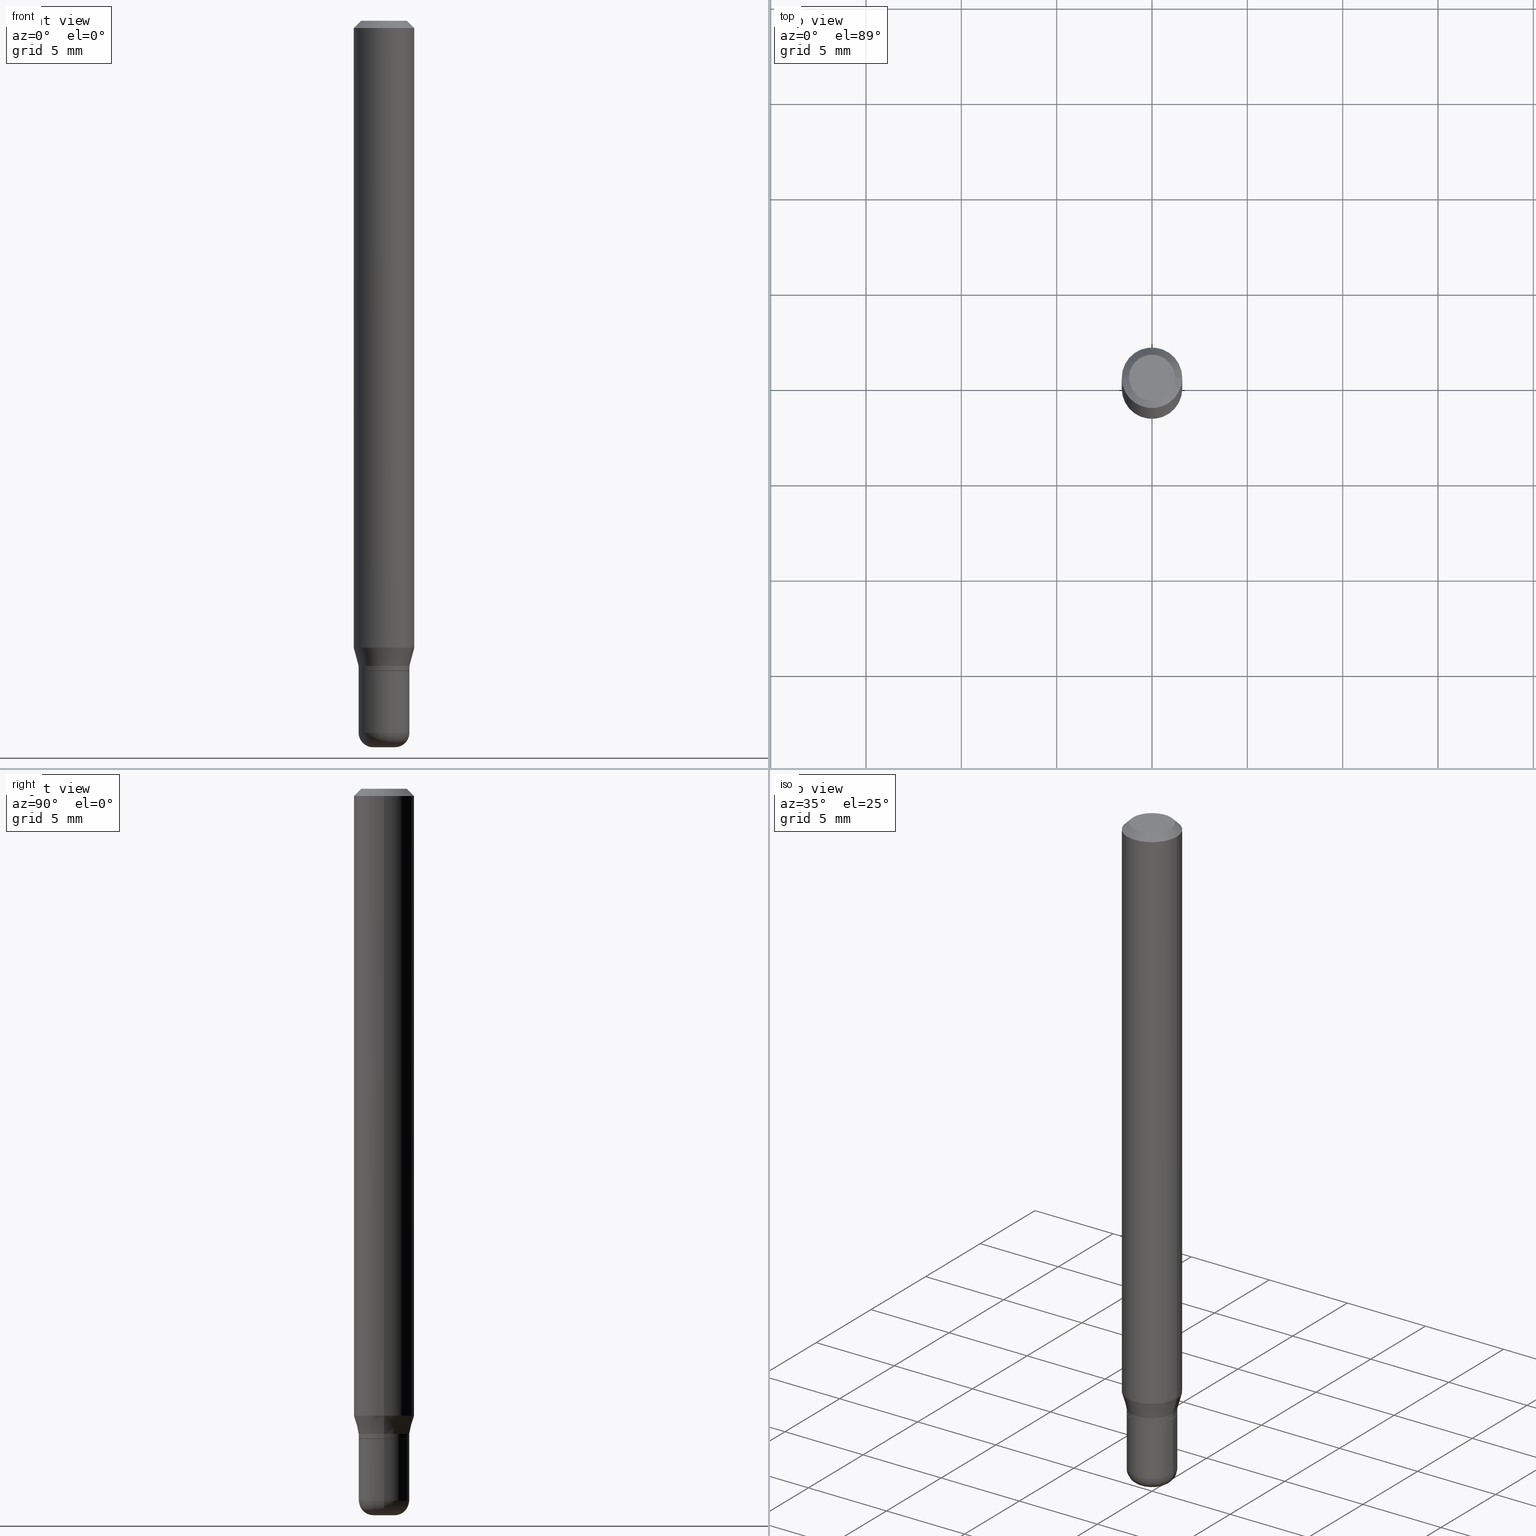
[diagram: canonical four-view strip — front | top / right | iso, engineering-drawing reading convention]
A machine part, canonical four-view strip (front | top / right | iso — engineering-drawing reading convention). The complete STEP part file that produces these views, byte-faithful:
ISO-10303-21;
HEADER;
FILE_DESCRIPTION (( 'STEP AP203' ),
    '1' );
FILE_NAME ('08750.STEP',
    '2024-02-29T20:48:12',
    ( '' ),
    ( '' ),
    'SwSTEP 2.0',
    'SolidWorks 2023',
    '' );
FILE_SCHEMA (( 'CONFIG_CONTROL_DESIGN' ));
ENDSEC;

DATA;
#1 = EDGE_CURVE ( 'NONE', #116, #23, #394, .T. ) ;
#2 = ORIENTED_EDGE ( 'NONE', *, *, #384, .F. ) ;
#3 = DIRECTION ( 'NONE',  ( 1.000000000000000000, -6.982962677686266711E-15, 4.876176775795936353E-29 ) ) ;
#4 = CARTESIAN_POINT ( 'NONE',  ( 3.668203209277632395E-31, -5.237222008264614861E-17, -0.01499999999999970281 ) ) ;
#5 = PERSON_AND_ORGANIZATION ( #91, #464 ) ;
#6 = PERSON_AND_ORGANIZATION ( #91, #464 ) ;
#7 = ORIENTED_EDGE ( 'NONE', *, *, #138, .T. ) ;
#8 = CARTESIAN_POINT ( 'NONE',  ( 3.594839145092150820E-29, -5.132477568099424807E-15, -1.470000000000000195 ) ) ;
#9 = EDGE_CURVE ( 'NONE', #229, #146, #83, .T. ) ;
#10 = CARTESIAN_POINT ( 'NONE',  ( -0.05200000000000005312, -4.317831474801671617E-15, -1.342500000000000249 ) ) ;
#11 = DATE_AND_TIME ( #251, #180 ) ;
#12 = DIRECTION ( 'NONE',  ( -2.445468806185136597E-29, 3.491481338843145583E-15, 1.000000000000000000 ) ) ;
#13 = PERSON_AND_ORGANIZATION ( #91, #464 ) ;
#14 = APPROVAL_ROLE ( '' ) ;
#15 = DIRECTION ( 'NONE',  ( 1.000000000000000000, -6.982962677686258033E-15, 0.000000000000000000 ) ) ;
#16 = ORIENTED_EDGE ( 'NONE', *, *, #368, .T. ) ;
#17 = AXIS2_PLACEMENT_3D ( 'NONE', #153, #237, #385 ) ;
#18 = CARTESIAN_POINT ( 'NONE',  ( 3.257364449838602633E-29, -4.650653143339071678E-15, -1.332000000000000517 ) ) ;
#19 = CALENDAR_DATE ( 2024, 29, 2 ) ;
#20 = DIRECTION ( 'NONE',  ( -2.438088387897960049E-29, 3.491481338843145188E-15, 1.000000000000000000 ) ) ;
#21 = AXIS2_PLACEMENT_3D ( 'NONE', #439, #44, #205 ) ;
#22 = CARTESIAN_POINT ( 'NONE',  ( 0.000000000000000000, 0.000000000000000000, 0.000000000000000000 ) ) ;
#23 = VERTEX_POINT ( 'NONE', #370 ) ;
#24 = ADVANCED_FACE ( 'NONE', ( #367 ), #410, .F. ) ;
#25 = CIRCLE ( 'NONE', #230, 0.05250000000000007438 ) ;
#26 = CYLINDRICAL_SURFACE ( 'NONE', #294, 0.05250000000000006051 ) ;
#27 = ORIENTED_EDGE ( 'NONE', *, *, #347, .F. ) ;
#28 = COORDINATED_UNIVERSAL_TIME_OFFSET ( 5, 0, .BEHIND. ) ;
#29 = DIRECTION ( 'NONE',  ( -2.445468806185136597E-29, 3.491481338843145583E-15, 1.000000000000000000 ) ) ;
#30 = ORIENTED_EDGE ( 'NONE', *, *, #337, .T. ) ;
#31 = EDGE_CURVE ( 'NONE', #67, #229, #510, .T. ) ;
#32 = DIRECTION ( 'NONE',  ( 1.000000000000000000, -6.982962677686265922E-15, 4.876176775795935793E-29 ) ) ;
#33 = ADVANCED_FACE ( 'NONE', ( #287 ), #75, .T. ) ;
#34 = ORIENTED_EDGE ( 'NONE', *, *, #417, .F. ) ;
#35 = CARTESIAN_POINT ( 'NONE',  ( -0.05249999999999999806, -4.536860696474120707E-15, -1.342500000000000249 ) ) ;
#36 = AXIS2_PLACEMENT_3D ( 'NONE', #22, #257, #53 ) ;
#37 = CARTESIAN_POINT ( 'NONE',  ( -0.05250000000000009520, -4.536860696474119918E-15, -1.470000000000000195 ) ) ;
#38 = VERTEX_POINT ( 'NONE', #285 ) ;
#39 = ORIENTED_EDGE ( 'NONE', *, *, #269, .T. ) ;
#40 = DIRECTION ( 'NONE',  ( -0.7071067811865479058, 2.468850131082261005E-15, -0.7071067811865471286 ) ) ;
#41 = DIRECTION ( 'NONE',  ( 1.000000000000000000, -6.982962677686266711E-15, 4.876176775795935793E-29 ) ) ;
#42 = PERSON_AND_ORGANIZATION ( #91, #464 ) ;
#43 = AXIS2_PLACEMENT_3D ( 'NONE', #201, #281, #437 ) ;
#44 = DIRECTION ( 'NONE',  ( -6.982962677686266711E-15, -1.000000000000000000, 3.491481338843145583E-15 ) ) ;
#45 = CARTESIAN_POINT ( 'NONE',  ( 3.316907271900976589E-16, 0.04750000000000000749, -2.925296391183627249E-17 ) ) ;
#46 = DIRECTION ( 'NONE',  ( -1.000000000000000000, 6.982962677686265922E-15, -4.876176775795935793E-29 ) ) ;
#47 = CC_DESIGN_DATE_AND_TIME_ASSIGNMENT ( #181, #103, ( #498 ) ) ;
#48 = DIRECTION ( 'NONE',  ( -2.445468806185136877E-29, 3.491481338843145188E-15, 1.000000000000000000 ) ) ;
#49 = DIRECTION ( 'NONE',  ( 1.000000000000000000, -6.982962677686267499E-15, 4.876176775795936353E-29 ) ) ;
#50 = VECTOR ( 'NONE', #447, 39.37007874015748143 ) ;
#51 = CARTESIAN_POINT ( 'NONE',  ( 3.283041872303546419E-29, -4.687313697396923253E-15, -1.342500000000000249 ) ) ;
#52 = PERSON_AND_ORGANIZATION_ROLE ( 'design_supplier' ) ;
#53 = DIRECTION ( 'NONE',  ( 1.000000000000000000, -6.982962677686266711E-15, 4.876176775795935793E-29 ) ) ;
#54 = ORIENTED_EDGE ( 'NONE', *, *, #242, .T. ) ;
#55 = CARTESIAN_POINT ( 'NONE',  ( -0.05200000000000005312, -4.315182247627559627E-15, -1.342500000000000249 ) ) ;
#56 = ORIENTED_EDGE ( 'NONE', *, *, #317, .F. ) ;
#57 = EDGE_CURVE ( 'NONE', #311, #142, #141, .T. ) ;
#58 = FACE_OUTER_BOUND ( 'NONE', #421, .T. ) ;
#59 = CALENDAR_DATE ( 2024, 29, 2 ) ;
#60 = CARTESIAN_POINT ( 'NONE',  ( 3.257364449838602633E-29, -4.650653143339071678E-15, -1.332000000000000517 ) ) ;
#61 = EDGE_CURVE ( 'NONE', #345, #476, #387, .T. ) ;
#62 = EDGE_LOOP ( 'NONE', ( #466, #390, #414, #379 ) ) ;
#63 = DIRECTION ( 'NONE',  ( -2.445468806185136597E-29, 3.491481338843145583E-15, 1.000000000000000000 ) ) ;
#64 = CIRCLE ( 'NONE', #208, 0.05250000000000010908 ) ;
#65 = ORIENTED_EDGE ( 'NONE', *, *, #148, .T. ) ;
#66 = AXIS2_PLACEMENT_3D ( 'NONE', #145, #101, #307 ) ;
#67 = VERTEX_POINT ( 'NONE', #163 ) ;
#68 = EDGE_CURVE ( 'NONE', #23, #311, #322, .T. ) ;
#69 = ORIENTED_EDGE ( 'NONE', *, *, #138, .F. ) ;
#70 = DIRECTION ( 'NONE',  ( -2.445468806185136877E-29, 3.491481338843145188E-15, 1.000000000000000000 ) ) ;
#71 = CARTESIAN_POINT ( 'NONE',  ( 3.283041872303546419E-29, -4.687313697396923253E-15, -1.342500000000000249 ) ) ;
#72 = ORIENTED_EDGE ( 'NONE', *, *, #61, .T. ) ;
#73 = AXIS2_PLACEMENT_3D ( 'NONE', #60, #465, #506 ) ;
#74 = VERTEX_POINT ( 'NONE', #301 ) ;
#75 = CYLINDRICAL_SURFACE ( 'NONE', #113, 0.06250000000000000000 ) ;
#76 = DIRECTION ( 'NONE',  ( 1.000000000000000000, -6.982962677686272233E-15, 0.000000000000000000 ) ) ;
#77 = DIRECTION ( 'NONE',  ( -2.445468806185136597E-29, 3.491481338843145583E-15, 1.000000000000000000 ) ) ;
#78 = AXIS2_PLACEMENT_3D ( 'NONE', #468, #274, #427 ) ;
#79 = APPROVAL_STATUS ( 'not_yet_approved' ) ;
#80 = EDGE_CURVE ( 'NONE', #146, #152, #478, .T. ) ;
#81 = ORIENTED_EDGE ( 'NONE', *, *, #384, .T. ) ;
#82 = DIRECTION ( 'NONE',  ( 1.000000000000000000, -6.982962677686258033E-15, 0.000000000000000000 ) ) ;
#83 = LINE ( 'NONE', #359, #239 ) ;
#84 = DIRECTION ( 'NONE',  ( 0.000000000000000000, 0.000000000000000000, 1.000000000000000000 ) ) ;
#85 = PERSON_AND_ORGANIZATION ( #91, #464 ) ;
#86 = DIRECTION ( 'NONE',  ( -1.000000000000000000, 7.105427357600997126E-15, 0.000000000000000000 ) ) ;
#87 = AXIS2_PLACEMENT_3D ( 'NONE', #267, #412, #49 ) ;
#88 = ADVANCED_FACE ( 'NONE', ( #381 ), #297, .T. ) ;
#89 = DIRECTION ( 'NONE',  ( 0.7071067811864267805, -2.468850131080992517E-15, 0.7071067811866682540 ) ) ;
#90 = VERTEX_POINT ( 'NONE', #96 ) ;
#91 = PERSON ( 'UNSPECIFIED', 'UNSPECIFIED', 'UNSPECIFIED', ('UNSPECIFIED'), ('UNSPECIFIED'), ('UNSPECIFIED') ) ;
#92 = VERTEX_POINT ( 'NONE', #459 ) ;
#93 = VECTOR ( 'NONE', #70, 39.37007874015748143 ) ;
#94 = SHAPE_DEFINITION_REPRESENTATION ( #225, #313 ) ;
#95 = CC_DESIGN_PERSON_AND_ORGANIZATION_ASSIGNMENT ( #13, #413, ( #498 ) ) ;
#96 = CARTESIAN_POINT ( 'NONE',  ( 0.05250000000000010908, -5.499083108677954756E-15, -1.470000000000000195 ) ) ;
#97 = PRODUCT ( '08750', '08750', '', ( #446 ) ) ;
#98 = ORIENTED_EDGE ( 'NONE', *, *, #269, .F. ) ;
#99 = CC_DESIGN_APPROVAL ( #276, ( #320 ) ) ;
#100 = VECTOR ( 'NONE', #40, 39.37007874015748143 ) ;
#101 = DIRECTION ( 'NONE',  ( -2.445468806185136597E-29, 3.491481338843145583E-15, 1.000000000000000000 ) ) ;
#102 = EDGE_LOOP ( 'NONE', ( #356, #39, #56, #238 ) ) ;
#103 = DATE_TIME_ROLE ( 'classification_date' ) ;
#104 = EDGE_LOOP ( 'NONE', ( #395, #72 ) ) ;
#105 = DIRECTION ( 'NONE',  ( -2.445468806185136597E-29, 3.491481338843145583E-15, 1.000000000000000000 ) ) ;
#106 = ORIENTED_EDGE ( 'NONE', *, *, #160, .F. ) ;
#107 = AXIS2_PLACEMENT_3D ( 'NONE', #434, #184, #400 ) ;
#108 = DIRECTION ( 'NONE',  ( 1.000000000000000000, -6.982962677686267499E-15, 4.876176775795936353E-29 ) ) ;
#109 = EDGE_LOOP ( 'NONE', ( #240, #115, #305, #27 ) ) ;
#110 = CARTESIAN_POINT ( 'NONE',  ( 0.05250000000000005357, -3.666055405785293573E-16, 2.559992807292869164E-30 ) ) ;
#111 = DIRECTION ( 'NONE',  ( -0.7071067811864267805, 7.493145998869918709E-15, 0.7071067811866682540 ) ) ;
#112 = PLANE ( 'NONE',  #286 ) ;
#113 = AXIS2_PLACEMENT_3D ( 'NONE', #516, #241, #41 ) ;
#114 = PRODUCT_RELATED_PRODUCT_CATEGORY ( 'detail', '', ( #97 ) ) ;
#115 = ORIENTED_EDGE ( 'NONE', *, *, #312, .T. ) ;
#116 = VERTEX_POINT ( 'NONE', #55 ) ;
#117 = DIRECTION ( 'NONE',  ( -2.445468806185136597E-29, 3.491481338843145583E-15, 1.000000000000000000 ) ) ;
#118 = VECTOR ( 'NONE', #327, 39.37007874015748143 ) ;
#119 = DIRECTION ( 'NONE',  ( -2.445468806185136597E-29, 3.491481338843145583E-15, 1.000000000000000000 ) ) ;
#120 = EDGE_CURVE ( 'NONE', #197, #253, #25, .T. ) ;
#121 = EDGE_CURVE ( 'NONE', #23, #116, #325, .T. ) ;
#122 = PERSON_AND_ORGANIZATION_ROLE ( 'design_owner' ) ;
#123 = CONICAL_SURFACE ( 'NONE', #416, 0.05200000000000005312, 0.7853981633972775267 ) ;
#124 = DIRECTION ( 'NONE',  ( -2.445468806185136877E-29, 3.491481338843145188E-15, 1.000000000000000000 ) ) ;
#125 = CARTESIAN_POINT ( 'NONE',  ( 0.000000000000000000, 0.000000000000000000, 0.000000000000000000 ) ) ;
#126 = ORIENTED_EDGE ( 'NONE', *, *, #363, .F. ) ;
#127 = DATE_AND_TIME ( #494, #372 ) ;
#128 = DIRECTION ( 'NONE',  ( -0.2588190451025214611, 5.211531920934550253E-15, 0.9659258262890679791 ) ) ;
#129 = CC_DESIGN_SECURITY_CLASSIFICATION ( #498, ( #320 ) ) ;
#130 = AXIS2_PLACEMENT_3D ( 'NONE', #481, #117, #3 ) ;
#131 = EDGE_LOOP ( 'NONE', ( #354, #503, #213, #397 ) ) ;
#132 = ADVANCED_FACE ( 'NONE', ( #330 ), #256, .T. ) ;
#133 = CARTESIAN_POINT ( 'NONE',  ( -6.680649051745406845E-45, 9.538196290434862081E-31, 2.731847993664263218E-16 ) ) ;
#134 = CIRCLE ( 'NONE', #340, 0.04750000000000000749 ) ;
#135 = ORIENTED_EDGE ( 'NONE', *, *, #80, .T. ) ;
#136 = DIRECTION ( 'NONE',  ( -2.445468806185136597E-29, 3.491481338843145583E-15, 1.000000000000000000 ) ) ;
#137 = ORIENTED_EDGE ( 'NONE', *, *, #61, .F. ) ;
#138 = EDGE_CURVE ( 'NONE', #154, #74, #134, .T. ) ;
#139 = CIRCLE ( 'NONE', #300, 0.05250000000000007438 ) ;
#140 = CYLINDRICAL_SURFACE ( 'NONE', #87, 0.05250000000000006051 ) ;
#141 = CIRCLE ( 'NONE', #411, 0.05250000000000005357 ) ;
#142 = VERTEX_POINT ( 'NONE', #178 ) ;
#144 = EDGE_CURVE ( 'NONE', #142, #253, #383, .T. ) ;
#143 = LENGTH_MEASURE_WITH_UNIT ( LENGTH_MEASURE( 0.02539999999999999897 ), #342 );
#145 = CARTESIAN_POINT ( 'NONE',  ( 3.668203209277632395E-31, -5.237222008264614861E-17, -0.01499999999999970281 ) ) ;
#146 = VERTEX_POINT ( 'NONE', #212 ) ;
#147 = DIRECTION ( 'NONE',  ( 1.000000000000000000, -6.982962677686262766E-15, 0.000000000000000000 ) ) ;
#148 = EDGE_CURVE ( 'NONE', #142, #311, #460, .T. ) ;
#149 = EDGE_LOOP ( 'NONE', ( #432, #488, #463, #233 ) ) ;
#150 = VECTOR ( 'NONE', #128, 39.37007874015748143 ) ;
#151 = CARTESIAN_POINT ( 'NONE',  ( -0.05250000000000007438, -4.176939141525808200E-15, -1.332000000000000517 ) ) ;
#152 = VERTEX_POINT ( 'NONE', #174 ) ;
#153 = CARTESIAN_POINT ( 'NONE',  ( 3.668203209277632395E-31, -5.237222008264614861E-17, -0.01499999999999970281 ) ) ;
#154 = VERTEX_POINT ( 'NONE', #333 ) ;
#155 = ADVANCED_FACE ( 'NONE', ( #495 ), #140, .T. ) ;
#156 = CARTESIAN_POINT ( 'NONE',  ( 3.582686580359767159E-29, -5.359686688179454114E-15, -1.500000000000000444 ) ) ;
#157 = CONICAL_SURFACE ( 'NONE', #17, 0.06250000000000000000, 0.7853981633974488341 ) ;
#158 = DIRECTION ( 'NONE',  ( -2.438088387897960049E-29, 3.491481338843145188E-15, 1.000000000000000000 ) ) ;
#159 = DATE_AND_TIME ( #518, #361 ) ;
#160 = EDGE_CURVE ( 'NONE', #253, #229, #377, .T. ) ;
#161 = DIRECTION ( 'NONE',  ( -1.000000000000000000, 6.982962677686265922E-15, -4.876176775795935793E-29 ) ) ;
#162 = LOCAL_TIME ( 15, 48, 12.00000000000000000, #28 ) ;
#163 = CARTESIAN_POINT ( 'NONE',  ( 0.06250000000000000000, -4.956784453192051541E-15, -1.294679491924312087 ) ) ;
#164 = LINE ( 'NONE', #110, #485 ) ;
#165 = PERSON_AND_ORGANIZATION_ROLE ( 'creator' ) ;
#166 = AXIS2_PLACEMENT_3D ( 'NONE', #482, #119, #405 ) ;
#167 = DIRECTION ( 'NONE',  ( -2.445468806185136877E-29, 3.491481338843145188E-15, 1.000000000000000000 ) ) ;
#168 = EDGE_CURVE ( 'NONE', #92, #224, #441, .T. ) ;
#169 = DIRECTION ( 'NONE',  ( -2.445468806185136597E-29, 3.491481338843145583E-15, 1.000000000000000000 ) ) ;
#170 = AXIS2_PLACEMENT_3D ( 'NONE', #125, #84, #321 ) ;
#171 = DIRECTION ( 'NONE',  ( 1.000000000000000000, -6.982962677686269866E-15, 0.000000000000000000 ) ) ;
#172 = VECTOR ( 'NONE', #167, 39.37007874015748143 ) ;
#173 = ORIENTED_EDGE ( 'NONE', *, *, #347, .T. ) ;
#174 = CARTESIAN_POINT ( 'NONE',  ( 0.06250000000000000000, -4.888073874380378612E-16, -0.01499999999999970281 ) ) ;
#175 = ORIENTED_EDGE ( 'NONE', *, *, #219, .F. ) ;
#176 = DIRECTION ( 'NONE',  ( 1.000000000000000000, -6.982962677686266711E-15, 4.876176775795936353E-29 ) ) ;
#177 = PERSON_AND_ORGANIZATION ( #91, #464 ) ;
#178 = CARTESIAN_POINT ( 'NONE',  ( -0.05250000000000005357, -4.312533020453448426E-15, -1.342000000000000082 ) ) ;
#179 = UNCERTAINTY_MEASURE_WITH_UNIT (LENGTH_MEASURE( 1.000000000000000082E-05 ), #199, 'distance_accuracy_value', 'NONE');
#180 = LOCAL_TIME ( 15, 48, 12.00000000000000000, #326 ) ;
#181 = DATE_AND_TIME ( #19, #492 ) ;
#182 = EDGE_LOOP ( 'NONE', ( #81, #429, #34, #513 ) ) ;
#183 = VECTOR ( 'NONE', #89, 39.37007874015748143 ) ;
#184 = DIRECTION ( 'NONE',  ( -2.445468806185136597E-29, 3.491481338843145583E-15, 1.000000000000000000 ) ) ;
#185 = CARTESIAN_POINT ( 'NONE',  ( 0.000000000000000000, 0.000000000000000000, 0.000000000000000000 ) ) ;
#186 = ORIENTED_EDGE ( 'NONE', *, *, #168, .F. ) ;
#187 = ADVANCED_FACE ( 'NONE', ( #511 ), #157, .T. ) ;
#188 = FACE_OUTER_BOUND ( 'NONE', #149, .T. ) ;
#189 = DIRECTION ( 'NONE',  ( 1.000000000000000000, -6.982962677686267499E-15, 0.000000000000000000 ) ) ;
#190 = ORIENTED_EDGE ( 'NONE', *, *, #242, .F. ) ;
#191 = VECTOR ( 'NONE', #408, 39.37007874015748143 ) ;
#192 = FACE_OUTER_BOUND ( 'NONE', #62, .T. ) ;
#193 = FACE_OUTER_BOUND ( 'NONE', #415, .T. ) ;
#194 = ORIENTED_EDGE ( 'NONE', *, *, #324, .T. ) ;
#195 = AXIS2_PLACEMENT_3D ( 'NONE', #335, #454, #222 ) ;
#196 = FACE_OUTER_BOUND ( 'NONE', #507, .T. ) ;
#197 = VERTEX_POINT ( 'NONE', #232 ) ;
#198 = ADVANCED_FACE ( 'NONE', ( #393 ), #26, .T. ) ;
#199 =( CONVERSION_BASED_UNIT ( 'INCH', #143 ) LENGTH_UNIT ( ) NAMED_UNIT ( #316 ) );
#200 = AXIS2_PLACEMENT_3D ( 'NONE', #309, #63, #234 ) ;
#201 = CARTESIAN_POINT ( 'NONE',  ( 3.166098311508526589E-29, -4.520349285836659871E-15, -1.294679491924312087 ) ) ;
#202 = PLANE ( 'NONE',  #350 ) ;
#203 = CIRCLE ( 'NONE', #493, 0.02250000000000000264 ) ;
#204 = CARTESIAN_POINT ( 'NONE',  ( 3.281819137900453057E-29, -4.685567956727500961E-15, -1.342000000000000082 ) ) ;
#205 = DIRECTION ( 'NONE',  ( 1.000000000000000000, -6.982962677686274599E-15, 0.000000000000000000 ) ) ;
#206 = ADVANCED_FACE ( 'NONE', ( #344 ), #486, .T. ) ;
#207 = APPROVAL_ROLE ( '' ) ;
#208 = AXIS2_PLACEMENT_3D ( 'NONE', #8, #77, #76 ) ;
#209 = DIRECTION ( 'NONE',  ( -2.445468806185136597E-29, 3.491481338843145583E-15, 1.000000000000000000 ) ) ;
#210 = AXIS2_PLACEMENT_3D ( 'NONE', #292, #451, #86 ) ;
#211 = CC_DESIGN_PERSON_AND_ORGANIZATION_ASSIGNMENT ( #260, #218, ( #320 ) ) ;
#212 = CARTESIAN_POINT ( 'NONE',  ( -0.06250000000000000000, -1.842271543109590267E-15, -0.01499999999999970281 ) ) ;
#213 = ORIENTED_EDGE ( 'NONE', *, *, #120, .F. ) ;
#214 = COORDINATED_UNIVERSAL_TIME_OFFSET ( 5, 0, .BEHIND. ) ;
#215 = DIRECTION ( 'NONE',  ( 1.000000000000000000, -6.982962677686266711E-15, 4.852736867747365086E-29 ) ) ;
#216 = AXIS2_PLACEMENT_3D ( 'NONE', #433, #209, #438 ) ;
#217 = ORIENTED_EDGE ( 'NONE', *, *, #1, .F. ) ;
#218 = PERSON_AND_ORGANIZATION_ROLE ( 'creator' ) ;
#219 = EDGE_CURVE ( 'NONE', #152, #146, #353, .T. ) ;
#220 = DIRECTION ( 'NONE',  ( 1.000000000000000000, -6.982962677686266711E-15, 0.000000000000000000 ) ) ;
#221 = AXIS2_PLACEMENT_3D ( 'NONE', #223, #508, #147 ) ;
#222 = DIRECTION ( 'NONE',  ( 1.000000000000000000, -6.982962677686272233E-15, 4.883557194083115143E-29 ) ) ;
#223 = CARTESIAN_POINT ( 'NONE',  ( 3.166098311508526589E-29, -4.520349285836659871E-15, -1.294679491924312087 ) ) ;
#224 = VERTEX_POINT ( 'NONE', #37 ) ;
#225 = PRODUCT_DEFINITION_SHAPE ( 'NONE', 'NONE',  #490 ) ;
#226 = VECTOR ( 'NONE', #124, 39.37007874015748143 ) ;
#227 = CARTESIAN_POINT ( 'NONE',  ( -0.06250000000000000000, 3.840629472727455270E-16, -0.01499999999999970281 ) ) ;
#228 = DIRECTION ( 'NONE',  ( -2.445468806185136597E-29, 3.491481338843145583E-15, 1.000000000000000000 ) ) ;
#229 = VERTEX_POINT ( 'NONE', #419 ) ;
#230 = AXIS2_PLACEMENT_3D ( 'NONE', #18, #261, #15 ) ;
#231 = ORIENTED_EDGE ( 'NONE', *, *, #9, .F. ) ;
#232 = CARTESIAN_POINT ( 'NONE',  ( 0.05250000000000007438, -5.017258683917600838E-15, -1.332000000000000517 ) ) ;
#233 = ORIENTED_EDGE ( 'NONE', *, *, #148, .F. ) ;
#234 = DIRECTION ( 'NONE',  ( 1.000000000000000000, -6.982962677686266711E-15, 4.852736867747365086E-29 ) ) ;
#235 = ADVANCED_FACE ( 'NONE', ( #196 ), #431, .T. ) ;
#236 = CC_DESIGN_PERSON_AND_ORGANIZATION_ASSIGNMENT ( #5, #165, ( #490 ) ) ;
#237 = DIRECTION ( 'NONE',  ( 2.445468806185136597E-29, -3.491481338843145583E-15, -1.000000000000000000 ) ) ;
#238 = ORIENTED_EDGE ( 'NONE', *, *, #368, .F. ) ;
#239 = VECTOR ( 'NONE', #318, 39.37007874015748143 ) ;
#240 = ORIENTED_EDGE ( 'NONE', *, *, #337, .F. ) ;
#241 = DIRECTION ( 'NONE',  ( -2.445468806185136597E-29, 3.491481338843145583E-15, 1.000000000000000000 ) ) ;
#242 = EDGE_CURVE ( 'NONE', #92, #38, #203, .T. ) ;
#243 = LINE ( 'NONE', #402, #191 ) ;
#244 = APPLICATION_PROTOCOL_DEFINITION ( 'international standard', 'config_control_design', 1994, #420 ) ;
#245 = DIRECTION ( 'NONE',  ( -2.445468806185136597E-29, 3.491481338843145583E-15, 1.000000000000000000 ) ) ;
#246 = EDGE_CURVE ( 'NONE', #229, #67, #247, .T. ) ;
#247 = CIRCLE ( 'NONE', #221, 0.06250000000000000000 ) ;
#248 = FACE_OUTER_BOUND ( 'NONE', #102, .T. ) ;
#249 = APPROVAL_DATE_TIME ( #127, #276 ) ;
#250 = CARTESIAN_POINT ( 'NONE',  ( 0.05250000000000006051, -3.666055405785294559E-16, 2.559992807292869514E-30 ) ) ;
#251 = CALENDAR_DATE ( 2024, 29, 2 ) ;
#252 = ADVANCED_FACE ( 'NONE', ( #193 ), #310, .T. ) ;
#253 = VERTEX_POINT ( 'NONE', #151 ) ;
#254 = PERSON_AND_ORGANIZATION ( #91, #464 ) ;
#255 = SECURITY_CLASSIFICATION_LEVEL ( 'unclassified' ) ;
#256 = TOROIDAL_SURFACE ( 'NONE', #195, 0.02249999999999999570, 0.03000000000000011685 ) ;
#257 = DIRECTION ( 'NONE',  ( -2.445468806185136597E-29, 3.491481338843145583E-15, 1.000000000000000000 ) ) ;
#258 = MANIFOLD_SOLID_BREP ( 'Body-Move/Copy2[1]', #500 ) ;
#259 = ORIENTED_EDGE ( 'NONE', *, *, #160, .T. ) ;
#260 = PERSON_AND_ORGANIZATION ( #91, #464 ) ;
#261 = DIRECTION ( 'NONE',  ( -2.445468806185136597E-29, 3.491481338843145583E-15, 1.000000000000000000 ) ) ;
#262 = CC_DESIGN_PERSON_AND_ORGANIZATION_ASSIGNMENT ( #85, #52, ( #320 ) ) ;
#263 = CARTESIAN_POINT ( 'NONE',  ( -0.05250000000000006051, 3.730349362740530275E-16, -2.582440922383828814E-30 ) ) ;
#264 = APPROVAL_ROLE ( '' ) ;
#265 = AXIS2_PLACEMENT_3D ( 'NONE', #461, #169, #220 ) ;
#266 = DESIGN_CONTEXT ( 'detailed design', #407, 'design' ) ;
#267 = CARTESIAN_POINT ( 'NONE',  ( 0.000000000000000000, 0.000000000000000000, 0.000000000000000000 ) ) ;
#268 = CIRCLE ( 'NONE', #107, 0.05250000000000010908 ) ;
#269 = EDGE_CURVE ( 'NONE', #224, #345, #314, .T. ) ;
#270 = EDGE_LOOP ( 'NONE', ( #106, #352, #471, #293 ) ) ;
#271 = CIRCLE ( 'NONE', #216, 0.02250000000000000264 ) ;
#272 = CARTESIAN_POINT ( 'NONE',  ( 3.257364449838602633E-29, -4.650653143339071678E-15, -1.332000000000000517 ) ) ;
#273 = ORIENTED_EDGE ( 'NONE', *, *, #144, .F. ) ;
#274 = DIRECTION ( 'NONE',  ( -2.445468806185136597E-29, 3.491481338843145583E-15, 1.000000000000000000 ) ) ;
#275 = ORIENTED_EDGE ( 'NONE', *, *, #332, .T. ) ;
#276 = APPROVAL ( #449, 'UNSPECIFIED' ) ;
#277 = ORIENTED_EDGE ( 'NONE', *, *, #121, .F. ) ;
#278 =( GEOMETRIC_REPRESENTATION_CONTEXT ( 3 ) GLOBAL_UNCERTAINTY_ASSIGNED_CONTEXT ( ( #179 ) ) GLOBAL_UNIT_ASSIGNED_CONTEXT ( ( #199, #430, #355 ) ) REPRESENTATION_CONTEXT ( 'NONE', 'WORKASPACE' ) );
#279 = EDGE_LOOP ( 'NONE', ( #2, #190 ) ) ;
#280 = PLANE ( 'NONE',  #489 ) ;
#281 = DIRECTION ( 'NONE',  ( -2.445468806185136597E-29, 3.491481338843145583E-15, 1.000000000000000000 ) ) ;
#282 = ADVANCED_FACE ( 'NONE', ( #473 ), #112, .F. ) ;
#283 = DIRECTION ( 'NONE',  ( -2.445468806185136597E-29, 3.491481338843145583E-15, 1.000000000000000000 ) ) ;
#284 = DIRECTION ( 'NONE',  ( 1.000000000000000000, -6.982962677686268288E-15, 0.000000000000000000 ) ) ;
#285 = CARTESIAN_POINT ( 'NONE',  ( 0.02250000000000000264, -5.394338668512660598E-15, -1.500000000000000444 ) ) ;
#286 = AXIS2_PLACEMENT_3D ( 'NONE', #346, #20, #32 ) ;
#287 = FACE_OUTER_BOUND ( 'NONE', #392, .T. ) ;
#288 = LINE ( 'NONE', #250, #118 ) ;
#289 = CARTESIAN_POINT ( 'NONE',  ( 0.06250000000000000000, -4.811533449433669144E-16, -0.01499999999999970281 ) ) ;
#290 = DIRECTION ( 'NONE',  ( -2.445468806185136597E-29, 3.491481338843145583E-15, 1.000000000000000000 ) ) ;
#291 = CC_DESIGN_APPROVAL ( #472, ( #498 ) ) ;
#292 = CARTESIAN_POINT ( 'NONE',  ( -0.02249999999999999570, -4.972605452553402518E-15, -1.470000000000000195 ) ) ;
#293 = ORIENTED_EDGE ( 'NONE', *, *, #246, .F. ) ;
#294 = AXIS2_PLACEMENT_3D ( 'NONE', #185, #339, #108 ) ;
#295 = CARTESIAN_POINT ( 'NONE',  ( 3.281819137900453057E-29, -4.685567956727500961E-15, -1.342000000000000082 ) ) ;
#296 = ORIENTED_EDGE ( 'NONE', *, *, #450, .F. ) ;
#297 = CYLINDRICAL_SURFACE ( 'NONE', #36, 0.06250000000000000000 ) ;
#298 = ADVANCED_FACE ( 'NONE', ( #192 ), #123, .T. ) ;
#299 = ADVANCED_FACE ( 'NONE', ( #188 ), #453, .T. ) ;
#300 = AXIS2_PLACEMENT_3D ( 'NONE', #442, #283, #82 ) ;
#301 = CARTESIAN_POINT ( 'NONE',  ( 0.04750000000000000749, -4.035134999187568762E-16, 2.731847993664288856E-16 ) ) ;
#302 = CARTESIAN_POINT ( 'NONE',  ( 0.000000000000000000, 0.000000000000000000, 0.000000000000000000 ) ) ;
#303 = CC_DESIGN_DATE_AND_TIME_ASSIGNMENT ( #11, #425, ( #490 ) ) ;
#304 = AXIS2_PLACEMENT_3D ( 'NONE', #51, #378, #284 ) ;
#305 = ORIENTED_EDGE ( 'NONE', *, *, #219, .T. ) ;
#306 = CIRCLE ( 'NONE', #21, 0.03000000000000010991 ) ;
#307 = DIRECTION ( 'NONE',  ( 1.000000000000000000, -6.982962677686266711E-15, 0.000000000000000000 ) ) ;
#308 = ORIENTED_EDGE ( 'NONE', *, *, #80, .F. ) ;
#309 = CARTESIAN_POINT ( 'NONE',  ( -6.680649051745406845E-45, 9.538196290434862081E-31, 2.731847993664263218E-16 ) ) ;
#310 = TOROIDAL_SURFACE ( 'NONE', #78, 0.02249999999999999570, 0.03000000000000011685 ) ;
#311 = VERTEX_POINT ( 'NONE', #348 ) ;
#312 = EDGE_CURVE ( 'NONE', #74, #152, #376, .T. ) ;
#313 = ADVANCED_BREP_SHAPE_REPRESENTATION ( '08750', ( #258, #426, #170 ), #278 ) ;
#314 = LINE ( 'NONE', #470, #93 ) ;
#315 = EDGE_LOOP ( 'NONE', ( #428, #69, #173, #135 ) ) ;
#316 = DIMENSIONAL_EXPONENTS ( 1.000000000000000000, 0.000000000000000000, 0.000000000000000000, 0.000000000000000000, 0.000000000000000000, 0.000000000000000000, 0.000000000000000000 ) ;
#317 = EDGE_CURVE ( 'NONE', #476, #345, #504, .T. ) ;
#318 = DIRECTION ( 'NONE',  ( -2.445468806185136877E-29, 3.491481338843145188E-15, 1.000000000000000000 ) ) ;
#319 = DIRECTION ( 'NONE',  ( 2.438088387897960049E-29, -3.491481338843145188E-15, -1.000000000000000000 ) ) ;
#320 = PRODUCT_DEFINITION_FORMATION_WITH_SPECIFIED_SOURCE ( 'ANY', '', #97, .NOT_KNOWN. ) ;
#321 = DIRECTION ( 'NONE',  ( 1.000000000000000000, 0.000000000000000000, 0.000000000000000000 ) ) ;
#322 = LINE ( 'NONE', #444, #183 ) ;
#323 = LINE ( 'NONE', #445, #226 ) ;
#324 = EDGE_CURVE ( 'NONE', #38, #90, #306, .T. ) ;
#325 = CIRCLE ( 'NONE', #365, 0.05200000000000005312 ) ;
#326 = COORDINATED_UNIVERSAL_TIME_OFFSET ( 5, 0, .BEHIND. ) ;
#327 = DIRECTION ( 'NONE',  ( -2.445468806185136877E-29, 3.491481338843145188E-15, 1.000000000000000000 ) ) ;
#328 = EDGE_CURVE ( 'NONE', #116, #142, #484, .T. ) ;
#329 = APPROVAL_PERSON_ORGANIZATION ( #42, #349, #207 ) ;
#330 = FACE_OUTER_BOUND ( 'NONE', #182, .T. ) ;
#331 = AXIS2_PLACEMENT_3D ( 'NONE', #440, #290, #401 ) ;
#332 = EDGE_CURVE ( 'NONE', #224, #90, #268, .T. ) ;
#333 = CARTESIAN_POINT ( 'NONE',  ( -0.04750000000000000749, 3.578768372314221353E-16, 2.731847993664239060E-16 ) ) ;
#334 = EDGE_LOOP ( 'NONE', ( #277, #217 ) ) ;
#335 = CARTESIAN_POINT ( 'NONE',  ( 3.594839145092150820E-29, -5.132477568099424807E-15, -1.470000000000000195 ) ) ;
#336 = CONICAL_SURFACE ( 'NONE', #515, 0.06250000000000000000, 0.7853981633974488341 ) ;
#337 = EDGE_CURVE ( 'NONE', #74, #154, #360, .T. ) ;
#338 = CARTESIAN_POINT ( 'NONE',  ( 0.05249999999999999806, -5.053919237975452413E-15, -1.342500000000000249 ) ) ;
#339 = DIRECTION ( 'NONE',  ( -2.445468806185136597E-29, 3.491481338843145583E-15, 1.000000000000000000 ) ) ;
#340 = AXIS2_PLACEMENT_3D ( 'NONE', #133, #12, #215 ) ;
#341 = ORIENTED_EDGE ( 'NONE', *, *, #455, .T. ) ;
#342 =( LENGTH_UNIT ( ) NAMED_UNIT ( * ) SI_UNIT ( $, .METRE. ) );
#343 = APPROVAL_DATE_TIME ( #505, #472 ) ;
#344 = FACE_OUTER_BOUND ( 'NONE', #270, .T. ) ;
#345 = VERTEX_POINT ( 'NONE', #35 ) ;
#346 = CARTESIAN_POINT ( 'NONE',  ( 3.283041872303546419E-29, -4.687313697396923253E-15, -1.342500000000000249 ) ) ;
#347 = EDGE_CURVE ( 'NONE', #154, #146, #396, .T. ) ;
#348 = CARTESIAN_POINT ( 'NONE',  ( 0.05250000000000005357, -5.052173497306030910E-15, -1.342000000000000082 ) ) ;
#349 = APPROVAL ( #79, 'UNSPECIFIED' ) ;
#350 = AXIS2_PLACEMENT_3D ( 'NONE', #399, #319, #46 ) ;
#351 = AXIS2_PLACEMENT_3D ( 'NONE', #302, #228, #176 ) ;
#352 = ORIENTED_EDGE ( 'NONE', *, *, #363, .T. ) ;
#353 = CIRCLE ( 'NONE', #66, 0.06250000000000000000 ) ;
#354 = ORIENTED_EDGE ( 'NONE', *, *, #57, .T. ) ;
#355 =( NAMED_UNIT ( * ) SI_UNIT ( $, .STERADIAN. ) SOLID_ANGLE_UNIT ( ) );
#356 = ORIENTED_EDGE ( 'NONE', *, *, #417, .T. ) ;
#357 = DIRECTION ( 'NONE',  ( -2.445468806185136597E-29, 3.491481338843145583E-15, 1.000000000000000000 ) ) ;
#358 = DIRECTION ( 'NONE',  ( -2.445468806185136597E-29, 3.491481338843145583E-15, 1.000000000000000000 ) ) ;
#359 = CARTESIAN_POINT ( 'NONE',  ( -0.06250000000000000000, 4.440892098500626162E-16, -3.074334431409316114E-30 ) ) ;
#360 = CIRCLE ( 'NONE', #200, 0.04750000000000000749 ) ;
#361 = LOCAL_TIME ( 15, 48, 12.00000000000000000, #366 ) ;
#362 = FACE_OUTER_BOUND ( 'NONE', #104, .T. ) ;
#363 = EDGE_CURVE ( 'NONE', #253, #197, #139, .T. ) ;
#364 = DIRECTION ( 'NONE',  ( 1.000000000000000000, -6.982962677686265922E-15, 4.876176775795935793E-29 ) ) ;
#365 = AXIS2_PLACEMENT_3D ( 'NONE', #418, #136, #171 ) ;
#366 = COORDINATED_UNIVERSAL_TIME_OFFSET ( 5, 0, .BEHIND. ) ;
#367 = FACE_OUTER_BOUND ( 'NONE', #423, .T. ) ;
#368 = EDGE_CURVE ( 'NONE', #90, #476, #164, .T. ) ;
#369 = ADVANCED_FACE ( 'NONE', ( #248 ), #406, .T. ) ;
#370 = CARTESIAN_POINT ( 'NONE',  ( 0.05200000000000005312, -5.050427756636610195E-15, -1.342500000000000249 ) ) ;
#371 = FACE_OUTER_BOUND ( 'NONE', #279, .T. ) ;
#372 = LOCAL_TIME ( 15, 48, 12.00000000000000000, #448 ) ;
#373 = APPROVAL_DATE_TIME ( #159, #349 ) ;
#374 = ORIENTED_EDGE ( 'NONE', *, *, #424, .F. ) ;
#375 = DIRECTION ( 'NONE',  ( 2.445468806185136597E-29, -3.491481338843145583E-15, -1.000000000000000000 ) ) ;
#376 = LINE ( 'NONE', #289, #50 ) ;
#377 = LINE ( 'NONE', #491, #150 ) ;
#378 = DIRECTION ( 'NONE',  ( -2.445468806185136597E-29, 3.491481338843145583E-15, 1.000000000000000000 ) ) ;
#379 = ORIENTED_EDGE ( 'NONE', *, *, #68, .F. ) ;
#380 = AXIS2_PLACEMENT_3D ( 'NONE', #272, #105, #422 ) ;
#381 = FACE_OUTER_BOUND ( 'NONE', #382, .T. ) ;
#382 = EDGE_LOOP ( 'NONE', ( #512, #479, #175, #296 ) ) ;
#383 = LINE ( 'NONE', #263, #172 ) ;
#384 = EDGE_CURVE ( 'NONE', #38, #92, #271, .T. ) ;
#385 = DIRECTION ( 'NONE',  ( -1.000000000000000000, 6.982962677686266711E-15, 0.000000000000000000 ) ) ;
#386 = ORIENTED_EDGE ( 'NONE', *, *, #246, .T. ) ;
#387 = CIRCLE ( 'NONE', #166, 0.05249999999999999806 ) ;
#388 = ORIENTED_EDGE ( 'NONE', *, *, #450, .T. ) ;
#389 = AXIS2_PLACEMENT_3D ( 'NONE', #71, #358, #514 ) ;
#390 = ORIENTED_EDGE ( 'NONE', *, *, #328, .T. ) ;
#391 = ADVANCED_FACE ( 'NONE', ( #362 ), #202, .F. ) ;
#392 = EDGE_LOOP ( 'NONE', ( #231, #386, #388, #308 ) ) ;
#393 = FACE_OUTER_BOUND ( 'NONE', #509, .T. ) ;
#394 = CIRCLE ( 'NONE', #331, 0.05200000000000005312 ) ;
#395 = ORIENTED_EDGE ( 'NONE', *, *, #317, .T. ) ;
#396 = LINE ( 'NONE', #227, #100 ) ;
#397 = ORIENTED_EDGE ( 'NONE', *, *, #455, .F. ) ;
#398 = ADVANCED_FACE ( 'NONE', ( #371 ), #280, .F. ) ;
#399 = CARTESIAN_POINT ( 'NONE',  ( 3.666055405785617499E-16, 0.05249999999999530736, -1.342500000000000471 ) ) ;
#400 = DIRECTION ( 'NONE',  ( 1.000000000000000000, -6.982962677686272233E-15, 0.000000000000000000 ) ) ;
#401 = DIRECTION ( 'NONE',  ( 1.000000000000000000, -6.982962677686269866E-15, 0.000000000000000000 ) ) ;
#402 = CARTESIAN_POINT ( 'NONE',  ( 0.05250000000000007438, -5.017258683917600838E-15, -1.332000000000000517 ) ) ;
#403 = DIRECTION ( 'NONE',  ( 1.000000000000000000, -6.982962677686260400E-15, 0.000000000000000000 ) ) ;
#404 = ADVANCED_FACE ( 'NONE', ( #436 ), #336, .T. ) ;
#405 = DIRECTION ( 'NONE',  ( 1.000000000000000000, -6.982962677686268288E-15, 0.000000000000000000 ) ) ;
#406 = CYLINDRICAL_SURFACE ( 'NONE', #130, 0.05250000000000005357 ) ;
#407 = APPLICATION_CONTEXT ( 'configuration controlled 3d designs of mechanical parts and assemblies' ) ;
#408 = DIRECTION ( 'NONE',  ( 0.2588190451025214611, 1.565188264969620982E-15, 0.9659258262890679791 ) ) ;
#409 = CC_DESIGN_APPROVAL ( #349, ( #490 ) ) ;
#410 = PLANE ( 'NONE',  #452 ) ;
#411 = AXIS2_PLACEMENT_3D ( 'NONE', #204, #245, #403 ) ;
#412 = DIRECTION ( 'NONE',  ( -2.445468806185136597E-29, 3.491481338843145583E-15, 1.000000000000000000 ) ) ;
#413 = PERSON_AND_ORGANIZATION_ROLE ( 'classification_officer' ) ;
#414 = ORIENTED_EDGE ( 'NONE', *, *, #57, .F. ) ;
#415 = EDGE_LOOP ( 'NONE', ( #186, #54, #194, #462 ) ) ;
#416 = AXIS2_PLACEMENT_3D ( 'NONE', #474, #357, #477 ) ;
#417 = EDGE_CURVE ( 'NONE', #90, #224, #64, .T. ) ;
#418 = CARTESIAN_POINT ( 'NONE',  ( 3.283041872303546419E-29, -4.687313697396923253E-15, -1.342500000000000249 ) ) ;
#419 = CARTESIAN_POINT ( 'NONE',  ( -0.06250000000000000000, -4.076260075986598044E-15, -1.294679491924312087 ) ) ;
#420 = APPLICATION_CONTEXT ( 'configuration controlled 3d designs of mechanical parts and assemblies' ) ;
#421 = EDGE_LOOP ( 'NONE', ( #98, #275, #16, #137 ) ) ;
#422 = DIRECTION ( 'NONE',  ( 1.000000000000000000, -6.982962677686258033E-15, 0.000000000000000000 ) ) ;
#423 = EDGE_LOOP ( 'NONE', ( #7, #30 ) ) ;
#424 = EDGE_CURVE ( 'NONE', #197, #67, #243, .T. ) ;
#425 = DATE_TIME_ROLE ( 'creation_date' ) ;
#426 = MANIFOLD_SOLID_BREP ( 'Body-Move/Copy2[2]', #517 ) ;
#427 = DIRECTION ( 'NONE',  ( 1.000000000000000000, -6.982962677686272233E-15, 4.883557194083115143E-29 ) ) ;
#428 = ORIENTED_EDGE ( 'NONE', *, *, #312, .F. ) ;
#429 = ORIENTED_EDGE ( 'NONE', *, *, #168, .T. ) ;
#430 =( NAMED_UNIT ( * ) PLANE_ANGLE_UNIT ( ) SI_UNIT ( $, .RADIAN. ) );
#431 = CONICAL_SURFACE ( 'NONE', #380, 0.05250000000000007438, 0.2617993877991501850 ) ;
#432 = ORIENTED_EDGE ( 'NONE', *, *, #328, .F. ) ;
#433 = CARTESIAN_POINT ( 'NONE',  ( 3.668203209277706016E-29, -5.237222008264719754E-15, -1.500000000000000444 ) ) ;
#434 = CARTESIAN_POINT ( 'NONE',  ( 3.594839145092150820E-29, -5.132477568099424807E-15, -1.470000000000000195 ) ) ;
#435 = DIRECTION ( 'NONE',  ( 2.438088387897960049E-29, -3.491481338843145188E-15, -1.000000000000000000 ) ) ;
#436 = FACE_OUTER_BOUND ( 'NONE', #315, .T. ) ;
#437 = DIRECTION ( 'NONE',  ( 1.000000000000000000, -6.982962677686262766E-15, 0.000000000000000000 ) ) ;
#438 = DIRECTION ( 'NONE',  ( 1.000000000000000000, -6.982962677686267499E-15, 0.000000000000000000 ) ) ;
#439 = CARTESIAN_POINT ( 'NONE',  ( 0.02249999999999999570, -5.289594228347365650E-15, -1.470000000000000195 ) ) ;
#440 = CARTESIAN_POINT ( 'NONE',  ( 3.283041872303546419E-29, -4.687313697396923253E-15, -1.342500000000000249 ) ) ;
#441 = CIRCLE ( 'NONE', #210, 0.03000000000000010991 ) ;
#442 = CARTESIAN_POINT ( 'NONE',  ( 3.257364449838602633E-29, -4.650653143339071678E-15, -1.332000000000000517 ) ) ;
#443 = APPLICATION_PROTOCOL_DEFINITION ( 'international standard', 'config_control_design', 1994, #407 ) ;
#444 = CARTESIAN_POINT ( 'NONE',  ( 0.05200000000000005312, -5.050427756636610195E-15, -1.342500000000000249 ) ) ;
#445 = CARTESIAN_POINT ( 'NONE',  ( 0.06250000000000000000, -4.364351673553916694E-16, 3.047610484872459871E-30 ) ) ;
#446 = MECHANICAL_CONTEXT ( 'NONE', #420, 'mechanical' ) ;
#447 = DIRECTION ( 'NONE',  ( 0.7071067811865479058, -7.319954787623257623E-15, -0.7071067811865471286 ) ) ;
#448 = COORDINATED_UNIVERSAL_TIME_OFFSET ( 5, 0, .BEHIND. ) ;
#449 = APPROVAL_STATUS ( 'not_yet_approved' ) ;
#450 = EDGE_CURVE ( 'NONE', #67, #152, #323, .T. ) ;
#451 = DIRECTION ( 'NONE',  ( 7.105427357601001859E-15, 1.000000000000000000, -3.491481338843145583E-15 ) ) ;
#452 = AXIS2_PLACEMENT_3D ( 'NONE', #45, #435, #161 ) ;
#453 = CONICAL_SURFACE ( 'NONE', #389, 0.05200000000000005312, 0.7853981633972775267 ) ;
#454 = DIRECTION ( 'NONE',  ( -2.445468806185136597E-29, 3.491481338843145583E-15, 1.000000000000000000 ) ) ;
#455 = EDGE_CURVE ( 'NONE', #311, #197, #288, .T. ) ;
#456 = VECTOR ( 'NONE', #111, 39.37007874015748143 ) ;
#457 = APPROVAL_PERSON_ORGANIZATION ( #177, #472, #264 ) ;
#458 = APPROVAL_STATUS ( 'not_yet_approved' ) ;
#459 = CARTESIAN_POINT ( 'NONE',  ( -0.02250000000000000264, -4.918396262272034080E-15, -1.500000000000000444 ) ) ;
#460 = CIRCLE ( 'NONE', #467, 0.05250000000000005357 ) ;
#461 = CARTESIAN_POINT ( 'NONE',  ( 3.668203209277632395E-31, -5.237222008264614861E-17, -0.01499999999999970281 ) ) ;
#462 = ORIENTED_EDGE ( 'NONE', *, *, #332, .F. ) ;
#463 = ORIENTED_EDGE ( 'NONE', *, *, #68, .T. ) ;
#464 = ORGANIZATION ( 'UNSPECIFIED', 'UNSPECIFIED', '' ) ;
#465 = DIRECTION ( 'NONE',  ( -2.445468806185136597E-29, 3.491481338843145583E-15, 1.000000000000000000 ) ) ;
#466 = ORIENTED_EDGE ( 'NONE', *, *, #121, .T. ) ;
#467 = AXIS2_PLACEMENT_3D ( 'NONE', #295, #497, #499 ) ;
#468 = CARTESIAN_POINT ( 'NONE',  ( 3.594839145092150820E-29, -5.132477568099424807E-15, -1.470000000000000195 ) ) ;
#469 = ORIENTED_EDGE ( 'NONE', *, *, #31, .F. ) ;
#470 = CARTESIAN_POINT ( 'NONE',  ( -0.05250000000000005357, 3.730349362740529782E-16, -2.582440922383828464E-30 ) ) ;
#471 = ORIENTED_EDGE ( 'NONE', *, *, #424, .T. ) ;
#472 = APPROVAL ( #458, 'UNSPECIFIED' ) ;
#473 = FACE_OUTER_BOUND ( 'NONE', #334, .T. ) ;
#474 = CARTESIAN_POINT ( 'NONE',  ( 3.283041872303546419E-29, -4.687313697396923253E-15, -1.342500000000000249 ) ) ;
#475 = APPROVAL_PERSON_ORGANIZATION ( #6, #276, #14 ) ;
#476 = VERTEX_POINT ( 'NONE', #338 ) ;
#477 = DIRECTION ( 'NONE',  ( 1.000000000000000000, -6.982962677686269866E-15, 0.000000000000000000 ) ) ;
#478 = CIRCLE ( 'NONE', #265, 0.06250000000000000000 ) ;
#479 = ORIENTED_EDGE ( 'NONE', *, *, #9, .T. ) ;
#480 = ORIENTED_EDGE ( 'NONE', *, *, #120, .T. ) ;
#481 = CARTESIAN_POINT ( 'NONE',  ( 0.000000000000000000, 0.000000000000000000, 0.000000000000000000 ) ) ;
#482 = CARTESIAN_POINT ( 'NONE',  ( 3.283041872303546419E-29, -4.687313697396923253E-15, -1.342500000000000249 ) ) ;
#483 = CC_DESIGN_PERSON_AND_ORGANIZATION_ASSIGNMENT ( #254, #122, ( #97 ) ) ;
#484 = LINE ( 'NONE', #10, #456 ) ;
#485 = VECTOR ( 'NONE', #48, 39.37007874015748143 ) ;
#486 = CONICAL_SURFACE ( 'NONE', #73, 0.05250000000000007438, 0.2617993877991501850 ) ;
#487 = DIRECTION ( 'NONE',  ( -1.000000000000000000, 6.982962677686266711E-15, 0.000000000000000000 ) ) ;
#488 = ORIENTED_EDGE ( 'NONE', *, *, #1, .T. ) ;
#489 = AXIS2_PLACEMENT_3D ( 'NONE', #156, #158, #364 ) ;
#490 = PRODUCT_DEFINITION ( 'UNKNOWN', '', #320, #266 ) ;
#491 = CARTESIAN_POINT ( 'NONE',  ( -0.05250000000000007438, -4.277618207065018355E-15, -1.332000000000000517 ) ) ;
#492 = LOCAL_TIME ( 15, 48, 12.00000000000000000, #214 ) ;
#493 = AXIS2_PLACEMENT_3D ( 'NONE', #502, #29, #189 ) ;
#494 = CALENDAR_DATE ( 2024, 29, 2 ) ;
#495 = FACE_OUTER_BOUND ( 'NONE', #131, .T. ) ;
#496 = ADVANCED_FACE ( 'NONE', ( #58 ), #501, .T. ) ;
#497 = DIRECTION ( 'NONE',  ( -2.445468806185136597E-29, 3.491481338843145583E-15, 1.000000000000000000 ) ) ;
#498 = SECURITY_CLASSIFICATION ( '', '', #255 ) ;
#499 = DIRECTION ( 'NONE',  ( 1.000000000000000000, -6.982962677686260400E-15, 0.000000000000000000 ) ) ;
#500 = CLOSED_SHELL ( 'NONE', ( #132, #369, #391, #496, #252, #398 ) ) ;
#501 = CYLINDRICAL_SURFACE ( 'NONE', #351, 0.05250000000000005357 ) ;
#502 = CARTESIAN_POINT ( 'NONE',  ( 3.668203209277706016E-29, -5.237222008264719754E-15, -1.500000000000000444 ) ) ;
#503 = ORIENTED_EDGE ( 'NONE', *, *, #144, .T. ) ;
#504 = CIRCLE ( 'NONE', #304, 0.05249999999999999806 ) ;
#505 = DATE_AND_TIME ( #59, #162 ) ;
#506 = DIRECTION ( 'NONE',  ( 1.000000000000000000, -6.982962677686258033E-15, 0.000000000000000000 ) ) ;
#507 = EDGE_LOOP ( 'NONE', ( #480, #259, #469, #374 ) ) ;
#508 = DIRECTION ( 'NONE',  ( -2.445468806185136597E-29, 3.491481338843145583E-15, 1.000000000000000000 ) ) ;
#509 = EDGE_LOOP ( 'NONE', ( #273, #65, #341, #126 ) ) ;
#510 = CIRCLE ( 'NONE', #43, 0.06250000000000000000 ) ;
#511 = FACE_OUTER_BOUND ( 'NONE', #109, .T. ) ;
#512 = ORIENTED_EDGE ( 'NONE', *, *, #31, .T. ) ;
#513 = ORIENTED_EDGE ( 'NONE', *, *, #324, .F. ) ;
#514 = DIRECTION ( 'NONE',  ( 1.000000000000000000, -6.982962677686269866E-15, 0.000000000000000000 ) ) ;
#515 = AXIS2_PLACEMENT_3D ( 'NONE', #4, #375, #487 ) ;
#516 = CARTESIAN_POINT ( 'NONE',  ( 0.000000000000000000, 0.000000000000000000, 0.000000000000000000 ) ) ;
#517 = CLOSED_SHELL ( 'NONE', ( #155, #298, #187, #88, #235, #206, #33, #404, #24, #282, #299, #198 ) ) ;
#518 = CALENDAR_DATE ( 2024, 29, 2 ) ;
ENDSEC;
END-ISO-10303-21;
